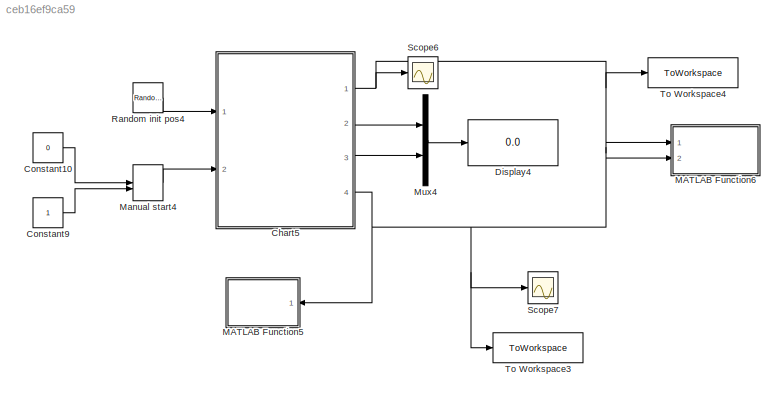
MODEL slx_ceb16ef9ca59
KIND model
CONFIG AbsTol = auto
CONFIG EnableMultiTasking = off
CONFIG FixedStep = 0.2
CONFIG MaxStep = auto
CONFIG MinStep = auto
CONFIG RelTol = 1e-3
CONFIG SampleTimeConstraint = Unconstrained
CONFIG SolverName = FixedStepAuto
CONFIG StartTime = 0.0
CONFIG StopTime = inf
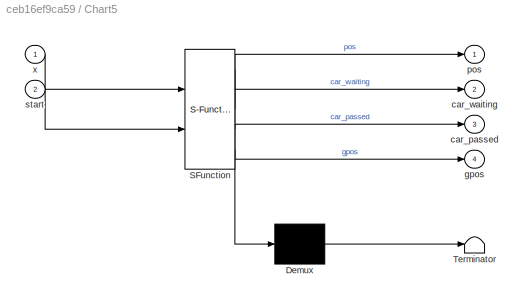
BLOCK [SubSystem] Chart5
  ErrorFcn = Stateflow.Translate.translate
  PermitHierarchicalResolution = ExplicitOnly
  Ports = [2, 4]
  RequestExecContextInheritance = off
  SFBlockType = Chart
  TreatAsAtomicUnit = on
BLOCK [Demux] Chart5/ Demux 
  Outputs = 1
  Ports = [1, 1]
BLOCK [S-Function] Chart5/ SFunction 
  EnableBusSupport = on
  FunctionName = sf_sfun
  PortCounts = [2 5]
  Ports = [2, 5]
  SFcnIsStateOwnerBlock = off
  SFunctionDeploymentMode = off
  Tag = Stateflow S-Function 11
BLOCK [Terminator] Chart5/ Terminator 
BLOCK [Outport] Chart5/car_passed
  Port = 3
BLOCK [Outport] Chart5/car_waiting
  Port = 2
BLOCK [Outport] Chart5/gpos
  Port = 4
BLOCK [Outport] Chart5/pos
BLOCK [Inport] Chart5/start
  Port = 2
BLOCK [Inport] Chart5/x
BLOCK [Constant] Constant10
  Value = 0
BLOCK [Constant] Constant9
BLOCK [Display] Display4
  Decimation = 1
  Ports = [1]
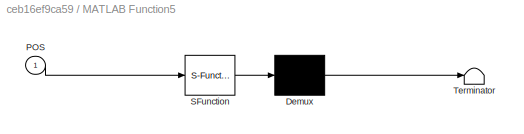
BLOCK [SubSystem] MATLAB Function5
  Commented = on
  ErrorFcn = Stateflow.Translate.translate
  NameLocation = top
  PermitHierarchicalResolution = ExplicitOnly
  Ports = [1]
  RequestExecContextInheritance = off
  SFBlockType = MATLAB Function
  TreatAsAtomicUnit = on
BLOCK [Demux] MATLAB Function5/ Demux 
  Outputs = 1
  Ports = [1, 1]
BLOCK [S-Function] MATLAB Function5/ SFunction 
  EnableBusSupport = on
  FunctionName = sf_sfun
  PortCounts = [1 1]
  Ports = [1, 1]
  SFcnIsStateOwnerBlock = off
  SFunctionDeploymentMode = off
  Tag = Stateflow S-Function 12
BLOCK [Terminator] MATLAB Function5/ Terminator 
BLOCK [Inport] MATLAB Function5/POS
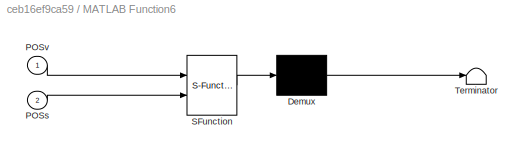
BLOCK [SubSystem] MATLAB Function6
  ErrorFcn = Stateflow.Translate.translate
  PermitHierarchicalResolution = ExplicitOnly
  Ports = [2]
  RequestExecContextInheritance = off
  SFBlockType = MATLAB Function
  TreatAsAtomicUnit = on
BLOCK [Demux] MATLAB Function6/ Demux 
  Outputs = 1
  Ports = [1, 1]
BLOCK [S-Function] MATLAB Function6/ SFunction 
  EnableBusSupport = on
  FunctionName = sf_sfun
  PortCounts = [2 1]
  Ports = [2, 1]
  SFcnIsStateOwnerBlock = off
  SFunctionDeploymentMode = off
  Tag = Stateflow S-Function 13
BLOCK [Terminator] MATLAB Function6/ Terminator 
BLOCK [Inport] MATLAB Function6/POSs
  Port = 2
BLOCK [Inport] MATLAB Function6/POSv
BLOCK [ManualSwitch] Manual start4
  CurrentSetting = 0
BLOCK [Mux] Mux4
  DisplayOption = bar
  Inputs = 2
  Ports = [2, 1]
BLOCK [RandomNumber] Random init pos4
  Mean = -15
  SampleTime = 0.2
  Variance = 5
BLOCK [Scope] Scope6
  Floating = off
  NumInputPorts = 1
  Ports = [1]
  ScopeSpecificationString = Simulink.scopes.TimeScopeBlockCfg('CurrentConfiguration', extmgr.ConfigurationSet(extmgr.Configuration('Core','General UI',true),extmgr.Configuration('Core','Source UI',true),extmgr.Configuration('Sources','WiredSimulink',true,'DataLoggingVariableName','ScopeData1'),extmgr.Configuration('Visuals','Time Domain',true,'SerializedDisplays',{struct('MinYLimReal','-17.99955','MaxYLimReal','-10.27729','Y...<+1450ch>
BLOCK [Scope] Scope7
  Floating = off
  NumInputPorts = 1
  Ports = [1]
  ScopeSpecificationString = Simulink.scopes.TimeScopeBlockCfg('CurrentConfiguration', extmgr.ConfigurationSet(extmgr.Configuration('Core','General UI',true),extmgr.Configuration('Core','Source UI',true),extmgr.Configuration('Sources','WiredSimulink',true,'DataLoggingVariableName','ScopeData2'),extmgr.Configuration('Visuals','Time Domain',true,'SerializedDisplays',{struct('MinYLimReal','-1.00000','MaxYLimReal','1.00000','YLab...<+1397ch>
BLOCK [ToWorkspace] To Workspace3
  FixptAsFi = on
  MaxDataPoints = inf
  Ports = [1]
  SampleTime = -1
  VariableName = GatePosition1
BLOCK [ToWorkspace] To Workspace4
  FixptAsFi = on
  MaxDataPoints = inf
  Ports = [1]
  SampleTime = -1
  VariableName = VehiclePosition1
NET Chart5:1 -> MATLAB Function6:1, Scope6:1, To Workspace4:1
LINE Chart5:2 -> Mux4:1
LINE Chart5:3 -> Mux4:2
NET Chart5:4 -> MATLAB Function5:1, MATLAB Function6:2, Scope7:1, To Workspace3:1
LINE Constant10:1 -> Manual start4:1
LINE Constant9:1 -> Manual start4:2
LINE Manual start4:1 -> Chart5:2
LINE Mux4:1 -> Display4:1
LINE Random init pos4:1 -> Chart5:1
note: NET lines group one-source signal fan-out (src -> all destinations, sorted); 1:1 wires keep LINE
CHART MATLAB Function5 states=1 transitions=1
  STATE_LABEL 'eML_blk_kernel()'
  STATE_LABEL "SCRIPT:\nfunction fcn(POS)\n\n    a = 0.5;\n    c = 2;\n    L = 4;\n    b = a + L*cos(POS);\n    d = c + L*sin(POS);\n    clf\n    plot([a b], [c d], 'r', 'LineWidth', 2)\n    hold on\n    plot([0.5 0.5], [0 2], 'b', 'LineWidth', 8)\n    xlim([0 6])\n    ylim([0 6])\n    \nend"
CHART MATLAB Function6 states=1 transitions=1
  STATE_LABEL 'eML_blk_kernel()'
  STATE_LABEL "SCRIPT:\nfunction fcn(POSv, POSs)\n\n    a = 0;\n    c = 2;\n    L = 4;\n    b = a + L*cos(POSs);\n    d = c + L*sin(POSs);\n    clf\n    plot3([0 0], [a b], [c d], 'r', 'LineWidth', 2)\n    hold on\n    plot3([0 0], [0 0], [0 2], 'b', 'LineWidth', 8)\n    hold on\n    plot3(POSv, 2, 0, '*k', 'LineWidth', 10)\n    grid on\n    xlim([-6 1])\n    ylim([-0.5 6])\n    zlim([0 6])\n    \nend"
CHART Chart5 states=12 transitions=15
  STATE_LABEL 'superstate1\n'
  STATE_LABEL 'idle\n\ninit = x;\npos = init;\ncar_waiting = 0;\ncar_passed = 0;'
  STATE_LABEL 'approaching\n\npos = init + v*elapsed(sec);\n'
  STATE_LABEL 'stop\n\ntmp = pos;\ncar_waiting = 1;\ncar_passed = 0;'
  STATE_LABEL 'pass\n\npos = tmp+v*elapsed(sec);\ncar_waiting = 0;\nex:\npos = tmp + v*elapsed(sec);\ntmp = pos;'
  STATE_LABEL 'passed\n\npos = tmp + v*elapsed(sec);\ncar_passed = 1;'
  STATE_LABEL '[pos >= 0]'
  STATE_LABEL '[start == 1]'
  STATE_LABEL '[after(10, sec)]'
  STATE_LABEL '[gate_up == 1]'
  STATE_LABEL '[pos >= gate_end]'
  STATE_LABEL 'idle\n\ninit = x;\npos = init;\ncar_waiting = 0;\ncar_passed = 0;'
  STATE_LABEL 'approaching\n\npos = init + v*elapsed(sec);\n'
  STATE_LABEL 'stop\n\ntmp = pos;\ncar_waiting = 1;\ncar_passed = 0;'
  STATE_LABEL 'pass\n\npos = tmp+v*elapsed(sec);\ncar_waiting = 0;\nex:\npos = tmp + v*elapsed(sec);\ntmp = pos;'
  STATE_LABEL 'passed\n\npos = tmp + v*elapsed(sec);\ncar_passed = 1;'
  STATE_LABEL 'superstate2'
  STATE_LABEL 'raising\n\n[gpos, gate_up, Tc] = gateAction(T, raise, gpos, Tc, 0);'
  STATE_LABEL 'up\n\noldpos = gpos;\nTc = 0;\n'
  STATE_LABEL 'down\n\ngpos = 0;\ngate_up = 0;\nraise = 0;\nTc = 0;\n'
  STATE_LABEL 'lowering\n\n[gpos, gate_up, Tc] = gateAction(T, raise, gpos, Tc, oldpos);'
  STATE_LABEL '[vpos, vgu, t] = gateAction(vt, vr, vposin, Tcum, oldpos)'
  STATE_LABEL 'SCRIPT:\nfunction [vpos, vgu, t] = gateAction(vt, vr, vposin, Tcum, oldpos)\n\n% vt is time\n% vr is raise command\n\n% vpos is pos\n% vgu is gate_up\n\n% gate specs\nwmax = 4*pi/180;                                                            % rad/s, maximum angular velocity of gate\ndwmax = 1*pi/180;                                                           % rad/s, maximum angular acceleration of gate\nDC ...<+443ch>'
  STATE_LABEL '[gate_up == 0 || gate_up > 1] {raise = 1, T = elapsed(sec)}'
  STATE_LABEL '[gate_up == 1]'
  STATE_LABEL '[car_waiting == 1] {raise = 1, T = elapsed(sec)}'
  STATE_LABEL '[car_passed == 0]'
  STATE_LABEL '[car_waiting == 0]'
  STATE_LABEL '[gate_up == 0]'
  STATE_LABEL '[car_passed == 1] {raise = -1, T = elapsed(sec)}'
  STATE_LABEL '[gate_up > 1] {raise = -1, T = elapsed(sec)}'
  STATE_LABEL 'raising\n\n[gpos, gate_up, Tc] = gateAction(T, raise, gpos, Tc, 0);'
  STATE_LABEL 'up\n\noldpos = gpos;\nTc = 0;\n'
  STATE_LABEL 'down\n\ngpos = 0;\ngate_up = 0;\nraise = 0;\nTc = 0;\n'
  STATE_LABEL 'lowering\n\n[gpos, gate_up, Tc] = gateAction(T, raise, gpos, Tc, oldpos);'
  STATE_LABEL '[vpos, vgu, t] = gateAction(vt, vr, vposin, Tcum, oldpos)'
  STATE_LABEL 'SCRIPT:\nfunction [vpos, vgu, t] = gateAction(vt, vr, vposin, Tcum, oldpos)\n\n% vt is time\n% vr is raise command\n\n% vpos is pos\n% vgu is gate_up\n\n% gate specs\nwmax = 4*pi/180;                                                            % rad/s, maximum angular velocity of gate\ndwmax = 1*pi/180;                                                           % rad/s, maximum angular acceleration of gate\nDC ...<+443ch>'
CHART  states=0 transitions=0
CHART  states=0 transitions=0
CHART  states=0 transitions=0
